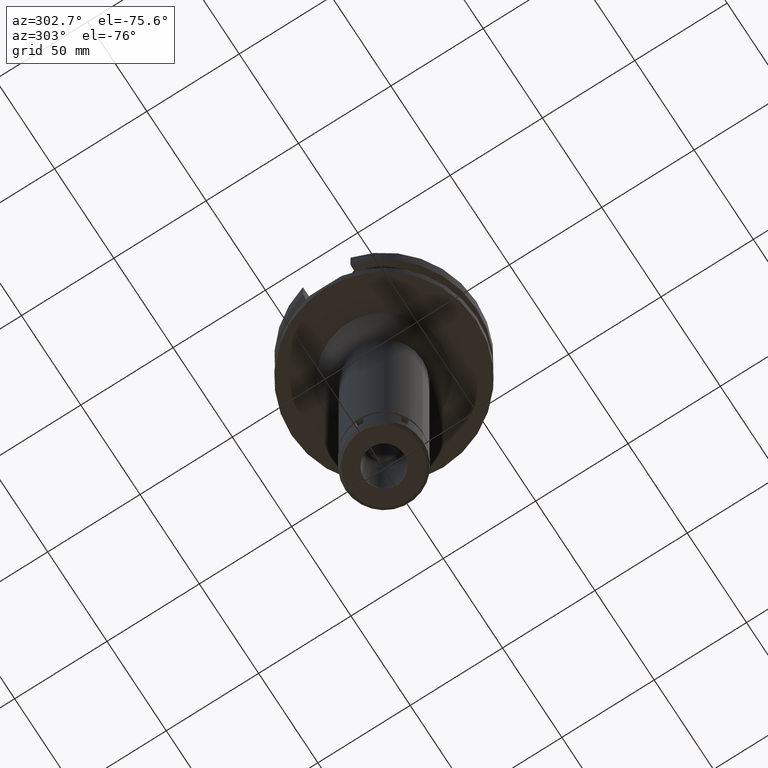
[diagram: clean part render]
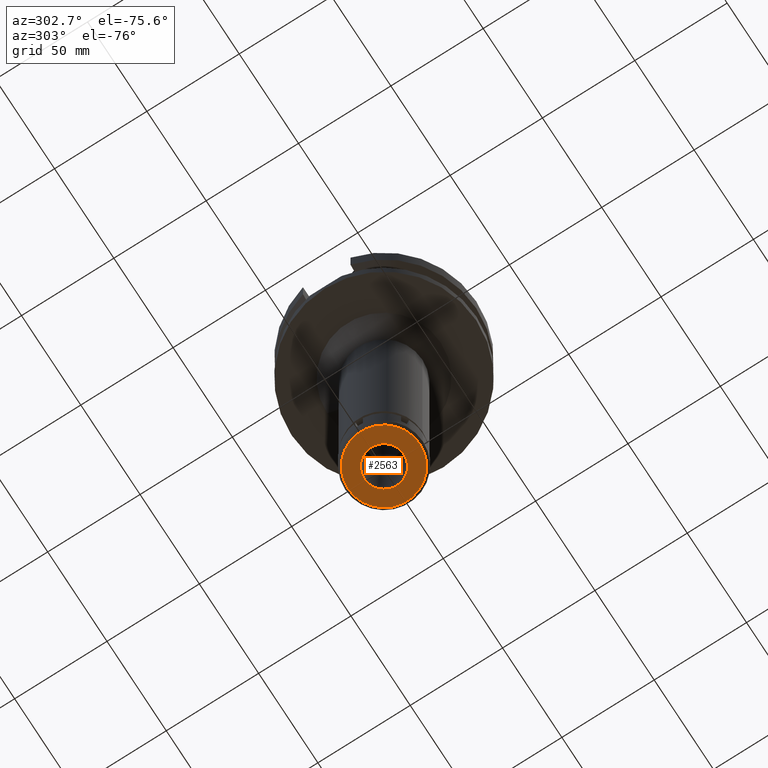
[diagram: same view with one face highlighted and labeled with its STEP entity id]
A machine part, auxiliary view. The second image highlights one B-rep face of the part: STEP entity #2563.
In plain terms, the highlighted planar face has unit normal (0, 0, -1).
Its self-contained STEP definition (entity closure, byte-faithful):
#135 = ORIENTED_EDGE ( 'NONE', *, *, #2871, .F. ) ;
#136 = DIRECTION ( 'NONE',  ( 0.0000000000000000000, 0.0000000000000000000, -1.000000000000000000 ) ) ;
#186 = DIRECTION ( 'NONE',  ( 0.0000000000000000000, 1.000000000000000000, 0.0000000000000000000 ) ) ;
#257 = DIRECTION ( 'NONE',  ( 0.0000000000000000000, 0.0000000000000000000, -1.000000000000000000 ) ) ;
#313 = CARTESIAN_POINT ( 'NONE',  ( 0.0000000000000000000, 10.75000000000000000, -16.00000000000000000 ) ) ;
#380 = EDGE_LOOP ( 'NONE', ( #3385, #135 ) ) ;
#462 = VERTEX_POINT ( 'NONE', #3182 ) ;
#542 = CARTESIAN_POINT ( 'NONE',  ( 0.0000000000000000000, 0.0000000000000000000, -16.00000000000000000 ) ) ;
#602 = VERTEX_POINT ( 'NONE', #3204 ) ;
#649 = AXIS2_PLACEMENT_3D ( 'NONE', #2403, #1451, #2082 ) ;
#706 = ORIENTED_EDGE ( 'NONE', *, *, #1830, .F. ) ;
#746 = CARTESIAN_POINT ( 'NONE',  ( 0.0000000000000000000, 0.0000000000000000000, -16.00000000000000000 ) ) ;
#813 = AXIS2_PLACEMENT_3D ( 'NONE', #1925, #1644, #990 ) ;
#958 = CIRCLE ( 'NONE', #2211, 19.50000000000000000 ) ;
#990 = DIRECTION ( 'NONE',  ( 0.0000000000000000000, -1.000000000000000000, 0.0000000000000000000 ) ) ;
#1056 = EDGE_LOOP ( 'NONE', ( #706, #2272 ) ) ;
#1352 = DIRECTION ( 'NONE',  ( 0.0000000000000000000, 0.0000000000000000000, 1.000000000000000000 ) ) ;
#1451 = DIRECTION ( 'NONE',  ( 0.0000000000000000000, 0.0000000000000000000, 1.000000000000000000 ) ) ;
#1501 = AXIS2_PLACEMENT_3D ( 'NONE', #542, #257, #1688 ) ;
#1517 = CARTESIAN_POINT ( 'NONE',  ( 0.0000000000000000000, 19.50000000000000000, -16.00000000000000000 ) ) ;
#1547 = PLANE ( 'NONE',  #1501 ) ;
#1622 = AXIS2_PLACEMENT_3D ( 'NONE', #3066, #136, #186 ) ;
#1644 = DIRECTION ( 'NONE',  ( 0.0000000000000000000, 0.0000000000000000000, -1.000000000000000000 ) ) ;
#1682 = CIRCLE ( 'NONE', #649, 19.50000000000000000 ) ;
#1688 = DIRECTION ( 'NONE',  ( 0.0000000000000000000, -1.000000000000000000, 0.0000000000000000000 ) ) ;
#1703 = FACE_OUTER_BOUND ( 'NONE', #1056, .T. ) ;
#1830 = EDGE_CURVE ( 'NONE', #1922, #462, #1682, .T. ) ;
#1922 = VERTEX_POINT ( 'NONE', #1517 ) ;
#1925 = CARTESIAN_POINT ( 'NONE',  ( 0.0000000000000000000, 0.0000000000000000000, -16.00000000000000000 ) ) ;
#2013 = VERTEX_POINT ( 'NONE', #313 ) ;
#2082 = DIRECTION ( 'NONE',  ( 0.0000000000000000000, 1.000000000000000000, 0.0000000000000000000 ) ) ;
#2211 = AXIS2_PLACEMENT_3D ( 'NONE', #746, #1352, #2478 ) ;
#2272 = ORIENTED_EDGE ( 'NONE', *, *, #2487, .F. ) ;
#2293 = EDGE_CURVE ( 'NONE', #2013, #602, #3574, .T. ) ;
#2403 = CARTESIAN_POINT ( 'NONE',  ( 0.0000000000000000000, 0.0000000000000000000, -16.00000000000000000 ) ) ;
#2478 = DIRECTION ( 'NONE',  ( 0.0000000000000000000, -1.000000000000000000, 0.0000000000000000000 ) ) ;
#2487 = EDGE_CURVE ( 'NONE', #462, #1922, #958, .T. ) ;
#2563 = ADVANCED_FACE ( 'NONE', ( #1703, #2848 ), #1547, .T. ) ;
#2848 = FACE_BOUND ( 'NONE', #380, .T. ) ;
#2871 = EDGE_CURVE ( 'NONE', #602, #2013, #3545, .T. ) ;
#3066 = CARTESIAN_POINT ( 'NONE',  ( 0.0000000000000000000, 0.0000000000000000000, -16.00000000000000000 ) ) ;
#3182 = CARTESIAN_POINT ( 'NONE',  ( 0.0000000000000000000, -19.50000000000000000, -16.00000000000000000 ) ) ;
#3204 = CARTESIAN_POINT ( 'NONE',  ( 0.0000000000000000000, -10.75000000000000000, -16.00000000000000000 ) ) ;
#3385 = ORIENTED_EDGE ( 'NONE', *, *, #2293, .F. ) ;
#3545 = CIRCLE ( 'NONE', #813, 10.75000000000000000 ) ;
#3574 = CIRCLE ( 'NONE', #1622, 10.75000000000000000 ) ;